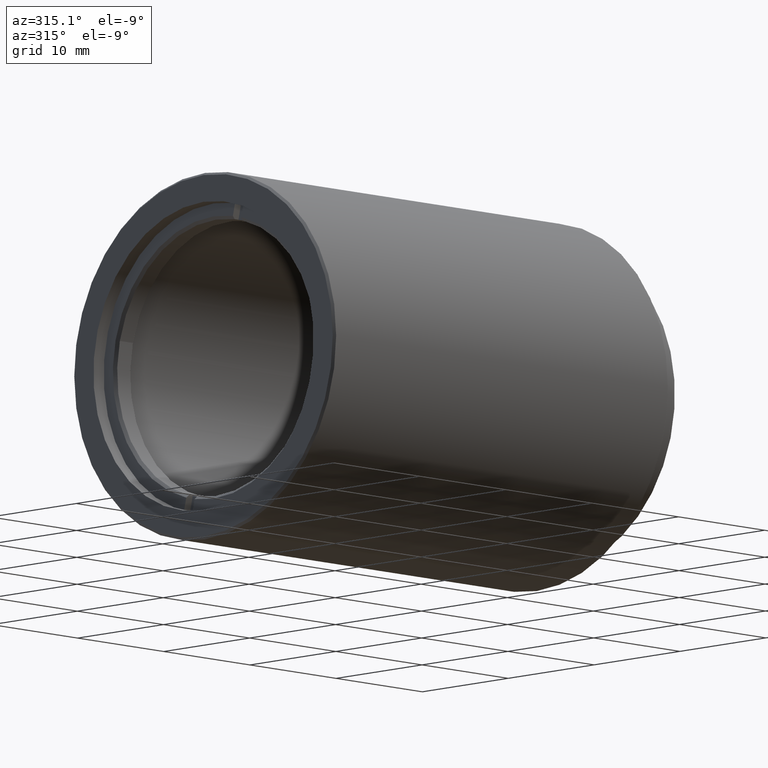
[diagram: clean part render]
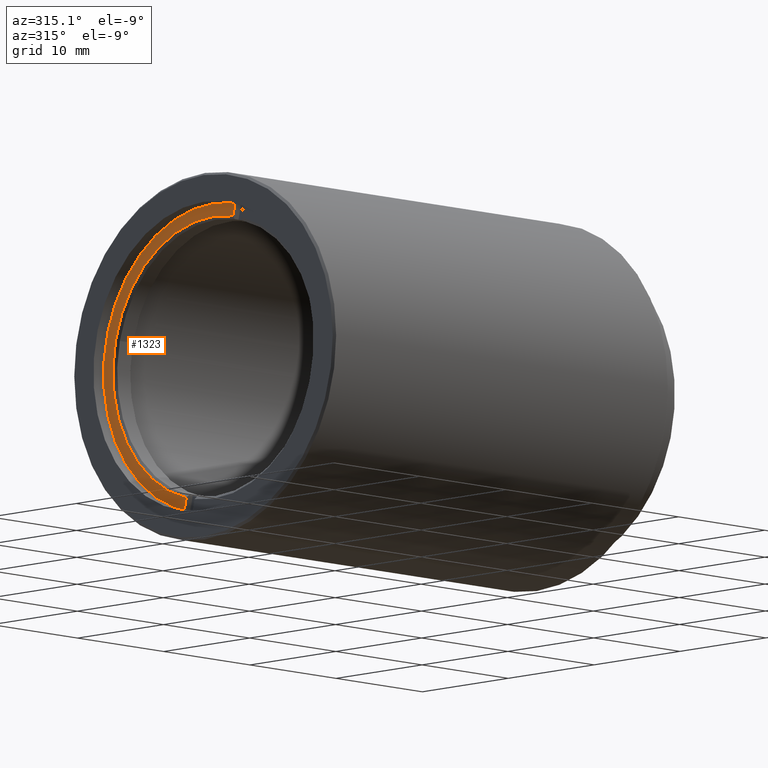
[diagram: same view with one face highlighted and labeled with its STEP entity id]
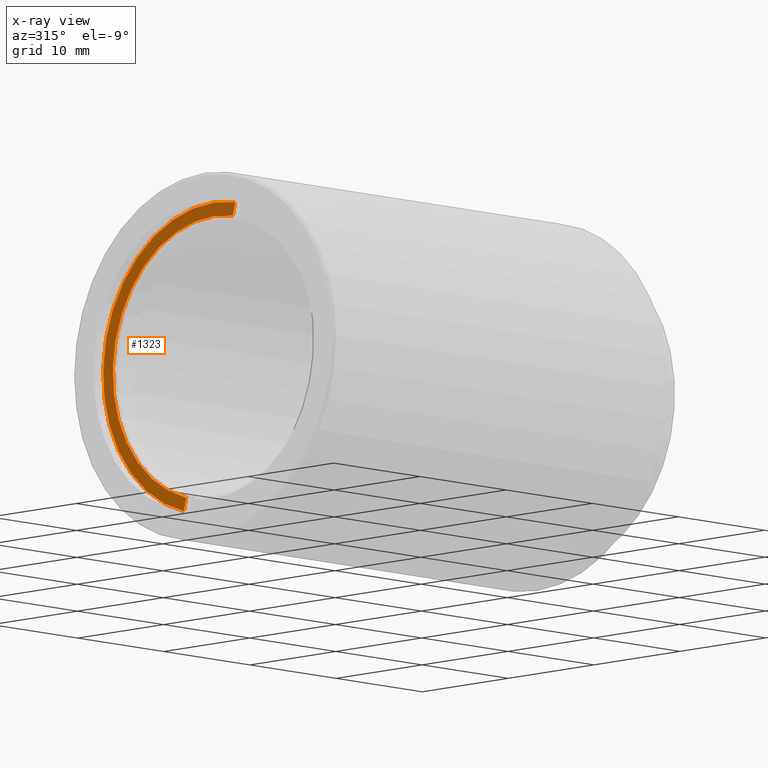
[diagram: x-ray of the same camera — body ghosted, the highlighted face saturated]
A machine part, auxiliary view. The second image highlights one B-rep face of the part: STEP entity #1323.
The next image is the same camera in x-ray: the body ghosted, the highlighted face saturated — about 0% of this face is hidden behind the body in this view.
In plain terms, the highlighted planar face has unit normal (-1, 0, 0).
Its self-contained STEP definition (entity closure, byte-faithful):
#11 = VERTEX_POINT ( 'NONE', #1397 ) ;
#31 = CARTESIAN_POINT ( 'NONE',  ( -34.18143387617175222, -20.10857142857142676, -9.486769009248165770E-16 ) ) ;
#242 = DIRECTION ( 'NONE',  ( -1.000000000000000000, -2.105809034732735045E-31, -4.356099237842255014E-33 ) ) ;
#246 = VECTOR ( 'NONE', #405, 1000.000000000000000 ) ;
#267 = PLANE ( 'NONE',  #908 ) ;
#272 = DIRECTION ( 'NONE',  ( 0.000000000000000000, -0.9728806805981732309, -0.2313075470425367541 ) ) ;
#340 = EDGE_CURVE ( 'NONE', #900, #11, #1176, .T. ) ;
#361 = LINE ( 'NONE', #1145, #246 ) ;
#399 = FACE_OUTER_BOUND ( 'NONE', #759, .T. ) ;
#405 = DIRECTION ( 'NONE',  ( 1.280923355719573131E-31, 0.2313075470425383084, -0.9728806805981727868 ) ) ;
#427 = CARTESIAN_POINT ( 'NONE',  ( -34.18143387617175222, -16.90568741678456632, -11.30972167018445695 ) ) ;
#469 = AXIS2_PLACEMENT_3D ( 'NONE', #31, #1039, #272 ) ;
#546 = AXIS2_PLACEMENT_3D ( 'NONE', #984, #242, #1223 ) ;
#587 = ORIENTED_EDGE ( 'NONE', *, *, #1524, .F. ) ;
#645 = CARTESIAN_POINT ( 'NONE',  ( -34.18143387617175222, -22.60248310187406773, 12.65102900224975357 ) ) ;
#752 = CARTESIAN_POINT ( 'NONE',  ( -34.18143387617175222, -20.10857142857142676, -9.486769009248165770E-16 ) ) ;
#759 = EDGE_LOOP ( 'NONE', ( #1474, #1054, #587, #778 ) ) ;
#778 = ORIENTED_EDGE ( 'NONE', *, *, #1373, .T. ) ;
#790 = VERTEX_POINT ( 'NONE', #878 ) ;
#798 = CIRCLE ( 'NONE', #469, 11.75449999999998774 ) ;
#878 = CARTESIAN_POINT ( 'NONE',  ( -34.18143387617175222, -22.33857475976011742, 11.54102921722699193 ) ) ;
#879 = DIRECTION ( 'NONE',  ( -1.000000000000000000, 1.731528637110815608E-31, 8.687864123437223635E-32 ) ) ;
#900 = VERTEX_POINT ( 'NONE', #645 ) ;
#908 = AXIS2_PLACEMENT_3D ( 'NONE', #752, #879, #1142 ) ;
#919 = CARTESIAN_POINT ( 'NONE',  ( -34.18143387617175222, -43.90942352773883073, 102.2681252363292685 ) ) ;
#984 = CARTESIAN_POINT ( 'NONE',  ( -34.18143387617175222, -20.10857142857142676, -9.486769009248165770E-16 ) ) ;
#1039 = DIRECTION ( 'NONE',  ( 1.000000000000000000, 2.105809034732735045E-31, 4.356099237842255014E-33 ) ) ;
#1054 = ORIENTED_EDGE ( 'NONE', *, *, #340, .T. ) ;
#1080 = DIRECTION ( 'NONE',  ( 1.280923355719573131E-31, 0.2313075470425383084, -0.9728806805981727868 ) ) ;
#1142 = DIRECTION ( 'NONE',  ( -1.885527612890710468E-31, -0.9728806805981727868, -0.2313075470425384472 ) ) ;
#1145 = CARTESIAN_POINT ( 'NONE',  ( -34.18143387617175222, -43.90942352773883073, 102.2681252363292685 ) ) ;
#1176 = CIRCLE ( 'NONE', #546, 12.89449999999999008 ) ;
#1223 = DIRECTION ( 'NONE',  ( 0.000000000000000000, -0.9728806805981727868, -0.2313075470425383917 ) ) ;
#1281 = VECTOR ( 'NONE', #1080, 1000.000000000000000 ) ;
#1323 = ADVANCED_FACE ( 'NONE', ( #399 ), #267, .T. ) ;
#1358 = LINE ( 'NONE', #919, #1281 ) ;
#1362 = EDGE_CURVE ( 'NONE', #900, #790, #361, .T. ) ;
#1373 = EDGE_CURVE ( 'NONE', #1470, #790, #798, .T. ) ;
#1397 = CARTESIAN_POINT ( 'NONE',  ( -34.18143387617175222, -16.64177907467061246, -12.41972145520721860 ) ) ;
#1470 = VERTEX_POINT ( 'NONE', #427 ) ;
#1474 = ORIENTED_EDGE ( 'NONE', *, *, #1362, .F. ) ;
#1524 = EDGE_CURVE ( 'NONE', #1470, #11, #1358, .T. ) ;